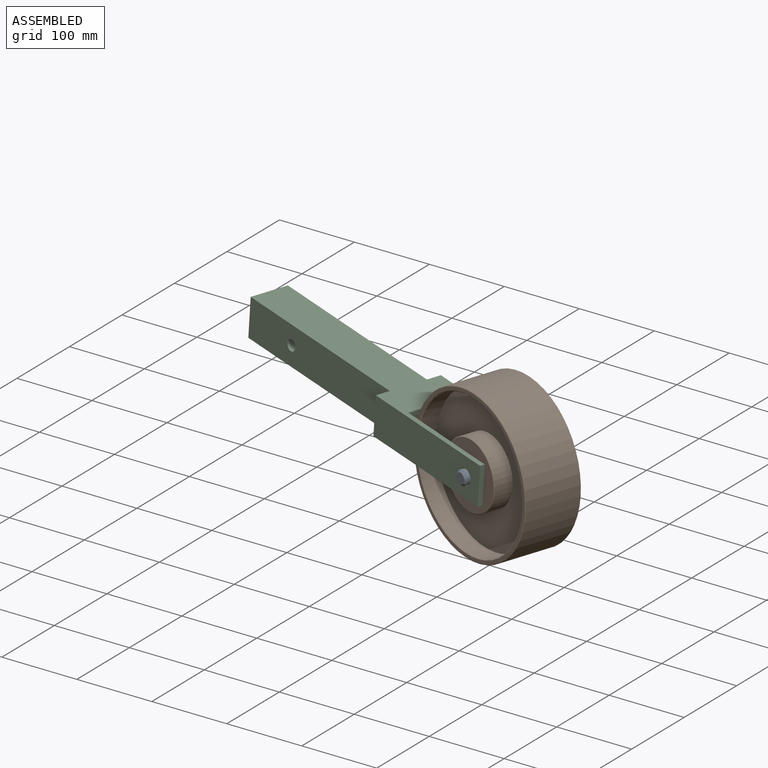
[diagram: assembled view]
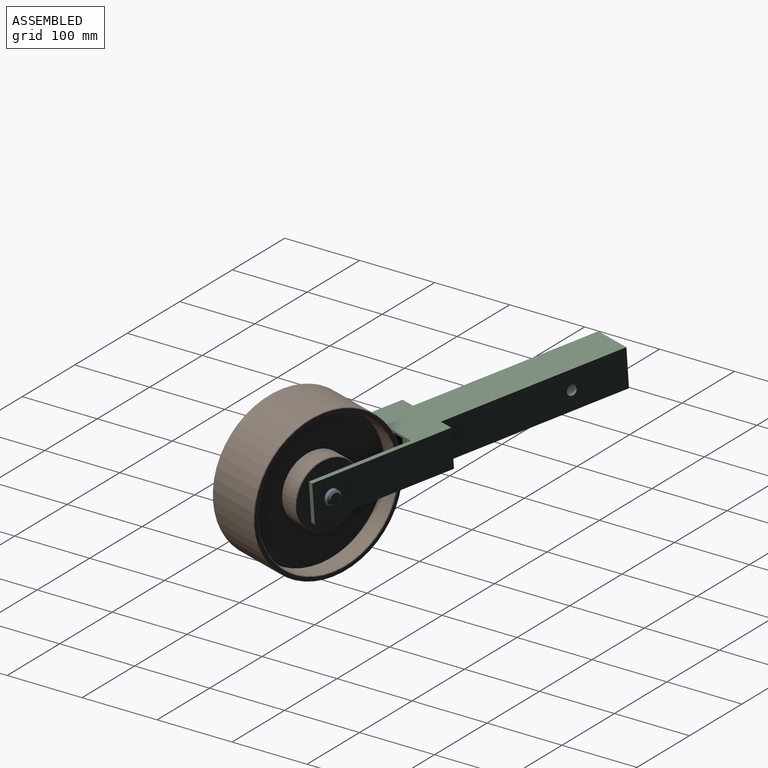
[diagram: assembled view, second angle]
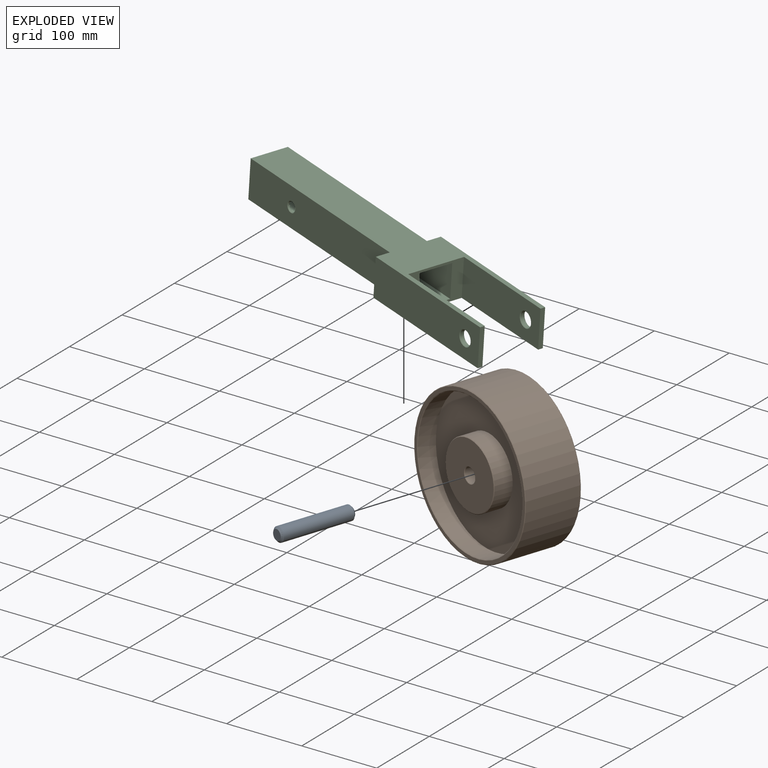
[diagram: exploded view]
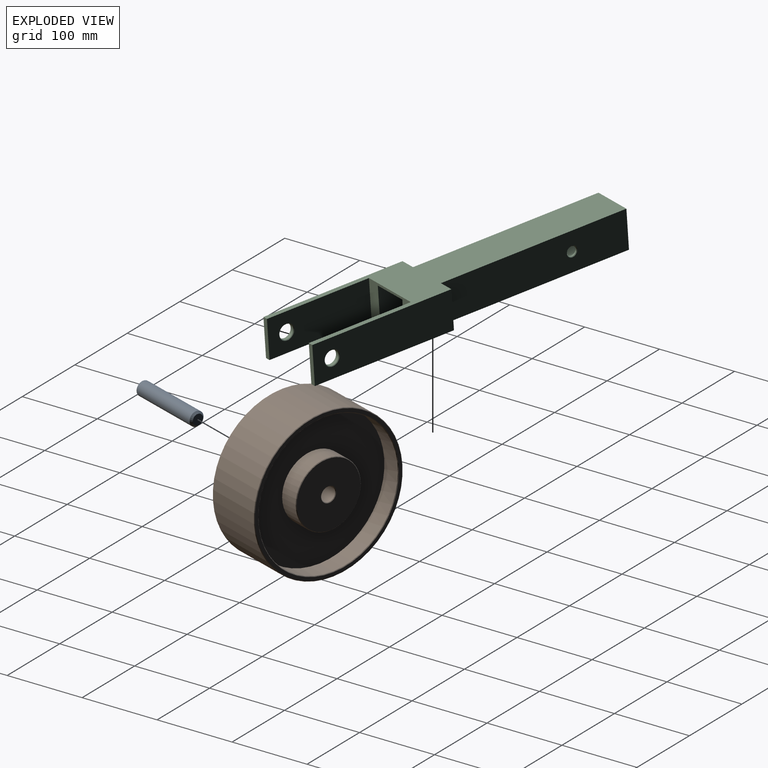
[diagram: exploded view, second angle]
ASSEMBLY  parts=3 mates=2
PART A: 5 faces, bbox 19.1x101.6x19.1 mm
  f0: cylinder r=9.53mm len=96.52mm, axis (0,1,0), area 5776.5mm2, adj f3,f4
  f1: plane 13.97x13.97mm, normal (0,-1,0), area 153.3mm2, adj f3
  f2: plane 13.97x13.97mm, normal (0,1,0), area 153.3mm2, adj f4
  f3: cone r=6.99mm half-angle=45deg, axis (0,1,0), area 186.3mm2, adj f0,f1
  f4: cone r=9.53mm half-angle=45deg, axis (0,-1,0), area 186.3mm2, adj f0,f2
PART B: 20 faces, bbox 203.2x76.2x203.2 mm
  f0: cylinder r=101.6mm len=203.2mm, axis (0,1,0), area 47671mm2, adj f12,f16
  f1: plane 201.68x201.68mm, normal (0,-1,0), area 2984.5mm2, adj f16,f17
  f2: plane 201.68x201.68mm, normal (0,1,0), area 2984.5mm2, adj f12,f13
  f3: cylinder r=44.45mm len=88.9mm, axis (0,-1,0), area 6881.1mm2, adj f5,f18
  f4: cylinder r=95.25mm len=190.5mm, axis (0,-1,0), area 14745.2mm2, adj f5,f17
  f5: plane 190.5x190.5mm, normal (0,-1,0), area 22295.1mm2, adj f3,f4
  f6: plane 87.38x87.38mm, normal (0,-1,0), area 5663.7mm2, adj f18,f19
  f7: cylinder r=44.45mm len=88.9mm, axis (0,1,0), area 6881.1mm2, adj f9,f14
  f8: cylinder r=95.25mm len=190.5mm, axis (0,1,0), area 14745.2mm2, adj f9,f13
  f9: plane 190.5x190.5mm, normal (0,1,0), area 22295.1mm2, adj f7,f8
  f10: plane 87.38x87.38mm, normal (0,1,0), area 5663.7mm2, adj f14,f15
  f11: cylinder r=9.53mm len=74.68mm, axis (0,-1,0), area 4469.2mm2, adj f15,f19
  f12: cone r=101.6mm half-angle=45deg, axis (0,-1,0), area 685.3mm2, adj f0,f2
  f13: cone r=95.25mm half-angle=45deg, axis (0,1,0), area 647.5mm2, adj f2,f8
  f14: cone r=43.69mm half-angle=45deg, axis (0,-1,0), area 298.4mm2, adj f7,f10
  f15: cone r=9.53mm half-angle=45deg, axis (0,1,0), area 67.1mm2, adj f10,f11
  f16: cone r=100.84mm half-angle=45deg, axis (0,1,0), area 685.3mm2, adj f0,f1
  f17: cone r=95.25mm half-angle=45deg, axis (0,-1,0), area 647.5mm2, adj f1,f4
  f18: cone r=43.69mm half-angle=45deg, axis (0,1,0), area 298.4mm2, adj f3,f6
  f19: cone r=9.53mm half-angle=45deg, axis (0,-1,0), area 67.1mm2, adj f6,f11
PART C: 30 faces, bbox 88.9x444.5x50.8 mm
  f0: plane 254x50.8mm, normal (1,0,0), area 12744.3mm2, adj f1,f3,f5,f10,f29
  f1: plane 444.5x88.9mm, normal (0,0,1), area 19193.5mm2, adj f0,f2,f4,f5,f10,f11,f12,f13
  f2: plane 254x50.8mm, normal (-1,0,0), area 12744.3mm2, adj f1,f3,f5,f11,f27
  f3: plane 444.5x88.9mm, normal (0,0,-1), area 19193.5mm2, adj f0,f2,f4,f5,f10,f11,f12,f13
  f4: plane 76.2x50.8mm, normal (0,-1,0), area 1895.2mm2, adj f1,f3,f6,f7,f8,f9,f14,f15
  f5: plane 50.8x50.8mm, normal (0,1,0), area 604.8mm2, adj f0,f1,f2,f3,f6,f7,f8,f9
  f6: plane 304.8x44.45mm, normal (-1,0,0), area 13389.5mm2, adj f4,f5,f7,f9,f28
  f7: plane 304.8x44.45mm, normal (0,0,-1), area 13548.4mm2, adj f4,f5,f6,f8
  f8: plane 304.8x44.45mm, normal (1,0,0), area 13389.5mm2, adj f4,f5,f7,f9,f26
  f9: plane 304.8x44.45mm, normal (0,0,1), area 13548.4mm2, adj f4,f5,f6,f8
  f10: plane 50.8x19.05mm, normal (0,1,0), area 967.7mm2, adj f0,f1,f3,f13
  f11: plane 50.8x19.05mm, normal (0,1,0), area 967.7mm2, adj f1,f2,f3,f17
  f12: plane 50.8x6.35mm, normal (0,-1,0), area 322.6mm2, adj f1,f3,f13,f14
  f13: plane 190.5x50.8mm, normal (1,0,0), area 9344.9mm2, adj f1,f3,f10,f12,f20
  f14: plane 139.7x50.8mm, normal (-1,0,0), area 6764.3mm2, adj f1,f3,f4,f12,f23
  f15: plane 139.7x50.8mm, normal (1,0,0), area 6764.3mm2, adj f1,f3,f4,f16,f21
  f16: plane 50.8x6.35mm, normal (0,-1,0), area 322.6mm2, adj f1,f3,f15,f17
  f17: plane 190.5x50.8mm, normal (-1,0,0), area 9344.9mm2, adj f1,f3,f11,f16,f22
  f18: cylinder r=9.53mm len=19.05mm, axis (1,0,0), area 288.8mm2, adj f21,f22
  f19: cylinder r=9.53mm len=19.05mm, axis (1,0,0), area 288.8mm2, adj f20,f23
  f20: cone r=9.53mm half-angle=45deg, axis (1,0,0), area 67.1mm2, adj f13,f19
  f21: cone r=9.53mm half-angle=45deg, axis (1,0,0), area 67.1mm2, adj f15,f18
  f22: cone r=10.29mm half-angle=45deg, axis (-1,0,0), area 67.1mm2, adj f17,f18
  f23: cone r=9.53mm half-angle=45deg, axis (-1,0,0), area 67.1mm2, adj f14,f19
  f24: cylinder r=6.35mm len=12.7mm, axis (1,0,0), area 65.9mm2, adj f26,f27
  f25: cylinder r=6.35mm len=12.7mm, axis (1,0,0), area 65.9mm2, adj f28,f29
  f26: cone r=6.35mm half-angle=45deg, axis (1,0,0), area 45.6mm2, adj f8,f24
  f27: cone r=7.11mm half-angle=45deg, axis (-1,0,0), area 45.6mm2, adj f2,f24
  f28: cone r=7.11mm half-angle=45deg, axis (-1,0,0), area 45.6mm2, adj f6,f25
  f29: cone r=6.35mm half-angle=45deg, axis (1,0,0), area 45.6mm2, adj f0,f25
PLACE A rot(axis=(0.01,0.23,-0.97),18.6deg) t=(97.65,-280.79,3.58)mm
PLACE B rot(axis=(0.04,0,1),161.9deg) t=(97.65,-280.79,3.58)mm
PLACE C rot(axis=(0.05,0.04,1),72deg) t=(-155.09,-197.99,23.48)mm fixed
MATE revolute C.f18 <-> B.f0  axis (-0.31,-0.95,0.01) through (109.49,-244.58,3.29)mm
MATE revolute A.f0 <-> C.f18  axis (0.31,0.95,-0.01) through (113.43,-232.51,3.2)mm
